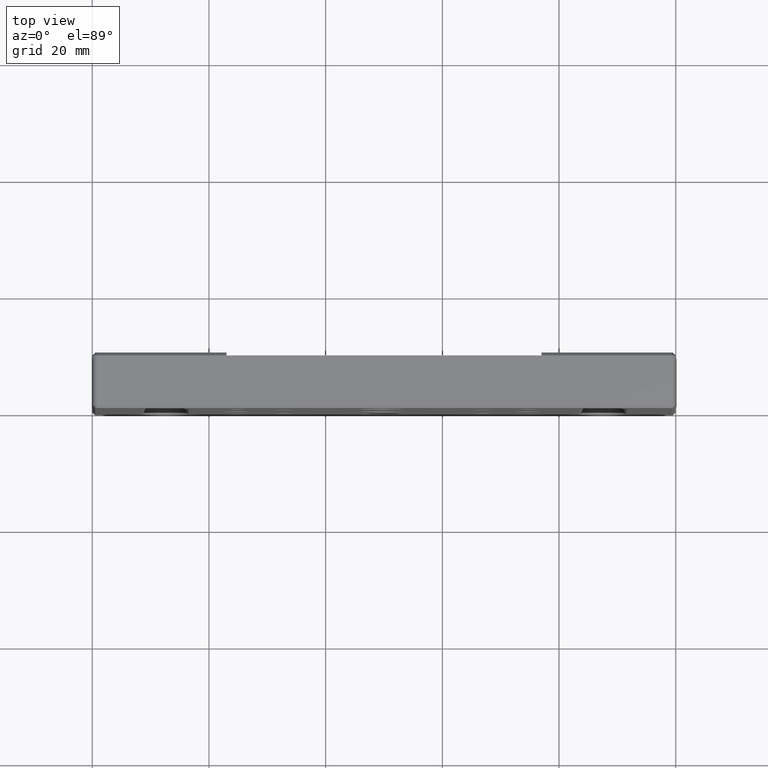
[diagram: clean part render]
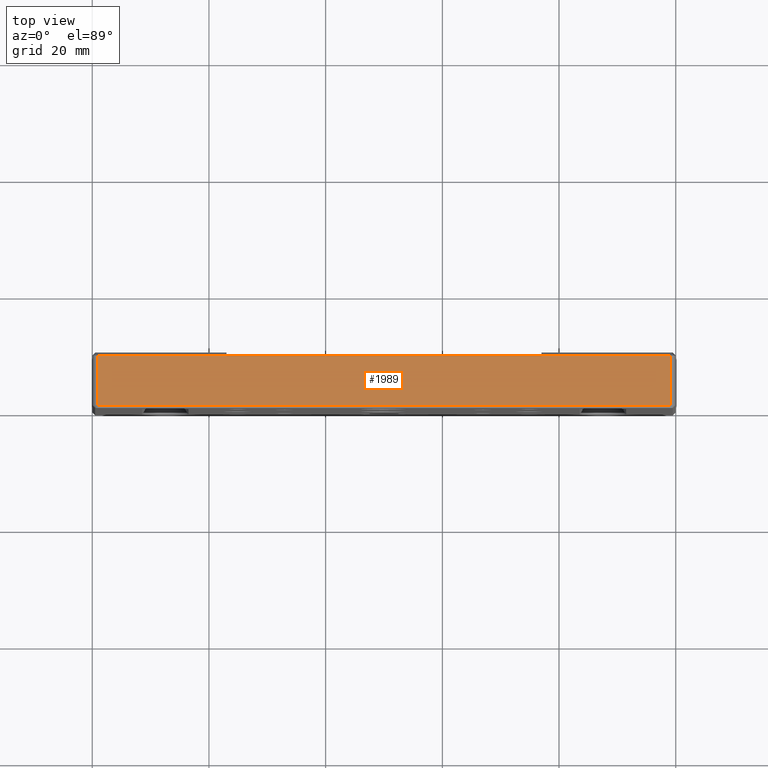
[diagram: same view with one face highlighted and labeled with its STEP entity id]
A machine part, top view. The second image highlights one B-rep face of the part: STEP entity #1989.
In plain terms, the highlighted planar face has unit normal (0, 0, -1).
Its self-contained STEP definition (entity closure, byte-faithful):
#228 = CARTESIAN_POINT ( 'NONE',  ( 0.9999999999999995600, 9.500000000000000000, 0.0000000000000000000 ) ) ;
#235 = CARTESIAN_POINT ( 'NONE',  ( 99.00000000000000000, 0.5000000000000004400, 0.0000000000000000000 ) ) ;
#236 = DIRECTION ( 'NONE',  ( 1.000000000000000000, 0.0000000000000000000, 0.0000000000000000000 ) ) ;
#237 = DIRECTION ( 'NONE',  ( 0.0000000000000000000, -1.000000000000000000, 0.0000000000000000000 ) ) ;
#238 = CARTESIAN_POINT ( 'NONE',  ( 0.0000000000000000000, 9.000000000000000000, 0.0000000000000000000 ) ) ;
#239 = DIRECTION ( 'NONE',  ( -1.000000000000000000, 0.0000000000000000000, 0.0000000000000000000 ) ) ;
#240 = CARTESIAN_POINT ( 'NONE',  ( 22.99999999999997200, 9.000000000000000000, 1.333170003442104700E-016 ) ) ;
#241 = DIRECTION ( 'NONE',  ( 1.000000000000000000, 0.0000000000000000000, -2.468833339707598800E-018 ) ) ;
#242 = CARTESIAN_POINT ( 'NONE',  ( 0.0000000000000000000, 9.000000000000000000, 0.0000000000000000000 ) ) ;
#243 = DIRECTION ( 'NONE',  ( -1.000000000000000000, 0.0000000000000000000, 0.0000000000000000000 ) ) ;
#244 = CARTESIAN_POINT ( 'NONE',  ( 99.00000000000000000, 9.500000000000000000, 0.0000000000000000000 ) ) ;
#320 = AXIS2_PLACEMENT_3D ( 'NONE', #1335, #1344, #1345 ) ;
#604 = DIRECTION ( 'NONE',  ( -0.0000000000000000000, 1.000000000000000000, -0.0000000000000000000 ) ) ;
#828 = EDGE_CURVE ( 'NONE', #975, #2347, #1449, .T. ) ;
#829 = EDGE_CURVE ( 'NONE', #976, #975, #1451, .T. ) ;
#830 = EDGE_CURVE ( 'NONE', #940, #976, #1445, .T. ) ;
#831 = EDGE_CURVE ( 'NONE', #940, #962, #1443, .T. ) ;
#832 = EDGE_CURVE ( 'NONE', #2346, #962, #1441, .T. ) ;
#833 = EDGE_CURVE ( 'NONE', #2347, #2346, #1439, .T. ) ;
#940 = VERTEX_POINT ( 'NONE', #1203 ) ;
#962 = VERTEX_POINT ( 'NONE', #1225 ) ;
#975 = VERTEX_POINT ( 'NONE', #1238 ) ;
#976 = VERTEX_POINT ( 'NONE', #1239 ) ;
#1203 = CARTESIAN_POINT ( 'NONE',  ( 22.99999999999997200, 9.000000000000000000, 1.333170003442104700E-016 ) ) ;
#1225 = CARTESIAN_POINT ( 'NONE',  ( 77.00000000000001400, 9.000000000000000000, 0.0000000000000000000 ) ) ;
#1238 = CARTESIAN_POINT ( 'NONE',  ( 0.9999999999999995600, 0.5000000000000004400, 0.0000000000000000000 ) ) ;
#1239 = CARTESIAN_POINT ( 'NONE',  ( 0.9999999999999995600, 9.000000000000000000, 0.0000000000000000000 ) ) ;
#1335 = CARTESIAN_POINT ( 'NONE',  ( 0.0000000000000000000, 9.500000000000000000, 0.0000000000000000000 ) ) ;
#1342 = PLANE ( 'NONE',  #320 ) ;
#1344 = DIRECTION ( 'NONE',  ( 0.0000000000000000000, 0.0000000000000000000, -1.000000000000000000 ) ) ;
#1345 = DIRECTION ( 'NONE',  ( -1.000000000000000000, 0.0000000000000000000, -0.0000000000000000000 ) ) ;
#1370 = CARTESIAN_POINT ( 'NONE',  ( 99.00000000000000000, 0.5000000000000004400, 0.0000000000000000000 ) ) ;
#1378 = CARTESIAN_POINT ( 'NONE',  ( 99.00000000000000000, 9.000000000000000000, 0.0000000000000000000 ) ) ;
#1436 = VECTOR ( 'NONE', #604, 1000.000000000000000 ) ;
#1438 = VECTOR ( 'NONE', #243, 1000.000000000000000 ) ;
#1439 = LINE ( 'NONE', #244, #1436 ) ;
#1440 = VECTOR ( 'NONE', #241, 1000.000000000000000 ) ;
#1441 = LINE ( 'NONE', #242, #1438 ) ;
#1442 = VECTOR ( 'NONE', #239, 1000.000000000000000 ) ;
#1443 = LINE ( 'NONE', #240, #1440 ) ;
#1444 = VECTOR ( 'NONE', #237, 1000.000000000000000 ) ;
#1445 = LINE ( 'NONE', #238, #1442 ) ;
#1446 = VECTOR ( 'NONE', #236, 1000.000000000000000 ) ;
#1449 = LINE ( 'NONE', #235, #1446 ) ;
#1451 = LINE ( 'NONE', #228, #1444 ) ;
#1789 = ORIENTED_EDGE ( 'NONE', *, *, #830, .T. ) ;
#1790 = ORIENTED_EDGE ( 'NONE', *, *, #829, .T. ) ;
#1792 = ORIENTED_EDGE ( 'NONE', *, *, #828, .T. ) ;
#1795 = ORIENTED_EDGE ( 'NONE', *, *, #833, .T. ) ;
#1801 = ORIENTED_EDGE ( 'NONE', *, *, #831, .F. ) ;
#1804 = ORIENTED_EDGE ( 'NONE', *, *, #832, .T. ) ;
#1989 = ADVANCED_FACE ( 'NONE', ( #2070 ), #1342, .F. ) ;
#2070 = FACE_OUTER_BOUND ( 'NONE', #2320, .T. ) ;
#2320 = EDGE_LOOP ( 'NONE', ( #1795, #1804, #1801, #1789, #1790, #1792 ) ) ;
#2346 = VERTEX_POINT ( 'NONE', #1378 ) ;
#2347 = VERTEX_POINT ( 'NONE', #1370 ) ;